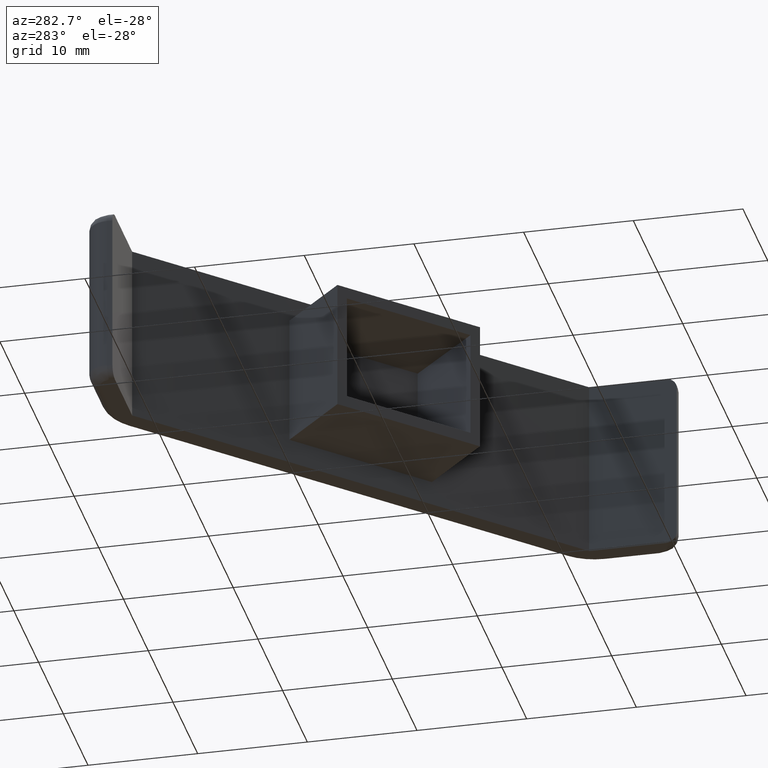
[diagram: clean part render]
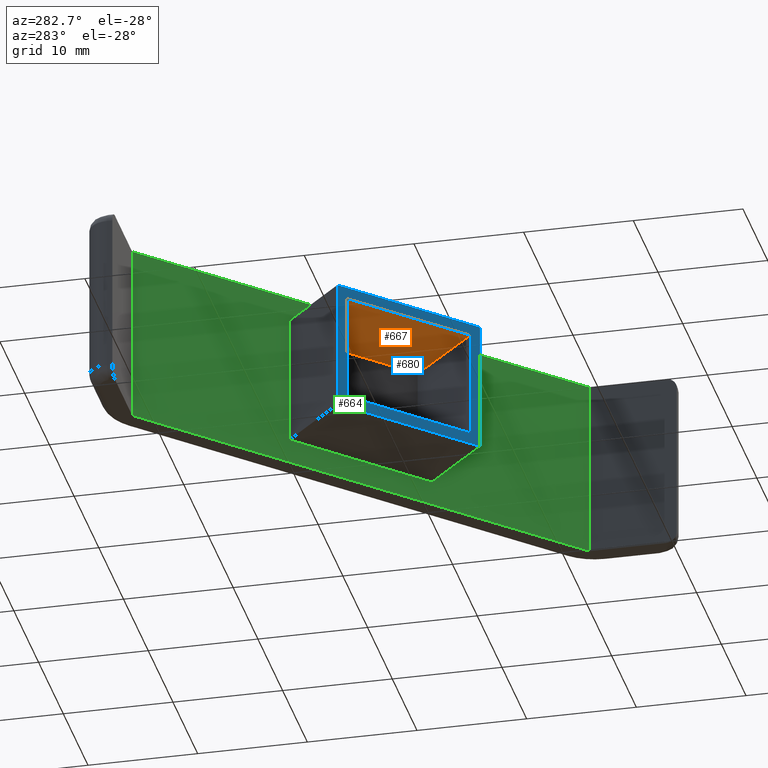
[diagram: same view with three faces highlighted in distinct colors, each labeled with its STEP entity id]
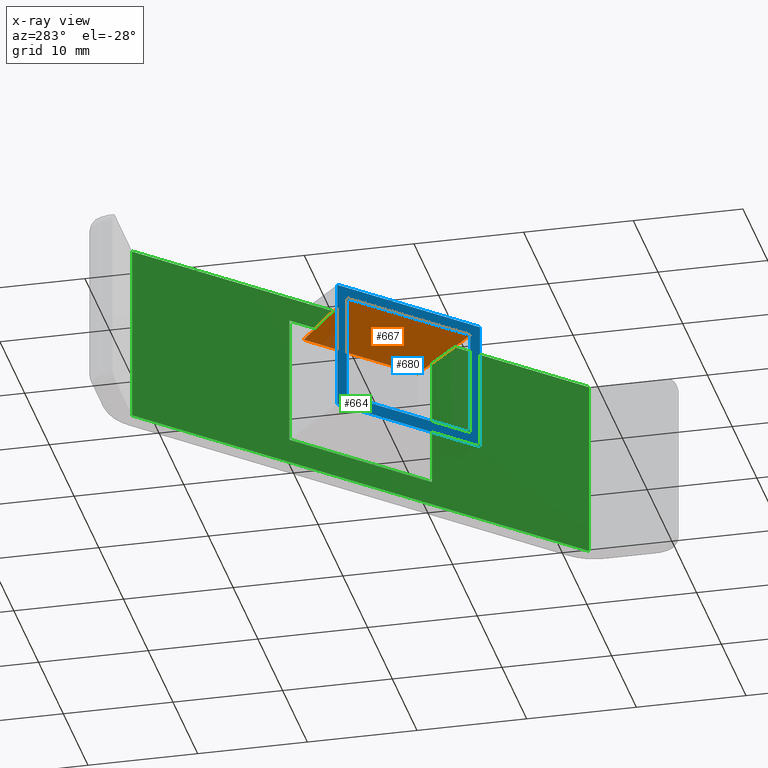
[diagram: x-ray of the same camera — body ghosted, the three highlighted faces saturated]
A machine part, auxiliary view with three faces highlighted in distinct colors.
The next image is the same camera in x-ray (body ghosted, the three faces saturated) — at least one of them is partly hidden behind the body in this view.
Their STEP definitions:

[orange] entity #667 — the highlighted planar face has unit normal (-0.037, -0.037, -0.9986).
#47=FACE_OUTER_BOUND('',#90,.T.);
#90=EDGE_LOOP('',(#486,#487,#488,#489));
#152=LINE('',#1061,#214);
#157=LINE('',#1071,#219);
#158=LINE('',#1073,#220);
#159=LINE('',#1074,#221);
#214=VECTOR('',#830,12.);
#219=VECTOR('',#839,8.02656718785064);
#220=VECTOR('',#840,8.02656718785069);
#221=VECTOR('',#841,13.);
#318=VERTEX_POINT('',#1058);
#319=VERTEX_POINT('',#1060);
#322=VERTEX_POINT('',#1070);
#323=VERTEX_POINT('',#1072);
#380=EDGE_CURVE('',#319,#318,#152,.T.);
#385=EDGE_CURVE('',#322,#319,#157,.T.);
#386=EDGE_CURVE('',#318,#323,#158,.T.);
#387=EDGE_CURVE('',#322,#323,#159,.T.);
#486=ORIENTED_EDGE('',*,*,#385,.T.);
#487=ORIENTED_EDGE('',*,*,#380,.T.);
#488=ORIENTED_EDGE('',*,*,#386,.T.);
#489=ORIENTED_EDGE('',*,*,#387,.F.);
#647=PLANE('',#719);
#667=ADVANCED_FACE('',(#47),#647,.T.);
#719=AXIS2_PLACEMENT_3D('',#1069,#837,#838);
#830=DIRECTION('',(0.707106781186547,-0.707106781186548,0.));
#837=DIRECTION('center_axis',(-0.0370071095592681,-0.0370071095592681,-0.998629534754574));
#838=DIRECTION('ref_axis',(-0.999314062578908,0.,0.0370324767202721));
#839=DIRECTION('',(0.748814219008006,0.660718428536476,-0.0522343144275855));
#840=DIRECTION('',(-0.660718428536475,-0.748814219008007,0.0522343144275855));
#841=DIRECTION('',(0.707106781186547,-0.707106781186548,-3.47420823359313E-18));
#1058=CARTESIAN_POINT('',(29.2426406871193,20.7573593128808,4.5));
#1060=CARTESIAN_POINT('',(20.7573593128808,29.2426406871193,4.5));
#1061=CARTESIAN_POINT('',(19.696699141101,30.3033008588991,4.5));
#1069=CARTESIAN_POINT('Origin',(19.696699141101,30.3033008588991,4.5));
#1070=CARTESIAN_POINT('',(14.7469516727951,23.9393398282202,4.91926223426434));
#1071=CARTESIAN_POINT('',(14.3932242826937,23.6272274251895,4.94393685614943));
#1072=CARTESIAN_POINT('',(23.9393398282202,14.746951672795,4.91926223426434));
#1073=CARTESIAN_POINT('',(23.6272274251895,14.3932242826936,4.94393685614943));
#1074=CARTESIAN_POINT('',(14.0398448916086,24.6464466094067,4.91926223426434));

[blue] entity #680 — the highlighted planar face has unit normal (0.7071, 0.7071, 0).
#41=FACE_BOUND('',#104,.T.);
#60=FACE_OUTER_BOUND('',#103,.T.);
#103=EDGE_LOOP('',(#542,#543,#544,#545));
#104=EDGE_LOOP('',(#546,#547,#548,#549));
#156=LINE('',#1068,#218);
#159=LINE('',#1074,#221);
#181=LINE('',#1136,#243);
#184=LINE('',#1142,#246);
#186=LINE('',#1145,#248);
#187=LINE('',#1147,#249);
#188=LINE('',#1148,#250);
#189=LINE('',#1149,#251);
#218=VECTOR('',#836,13.);
#221=VECTOR('',#841,13.);
#243=VECTOR('',#899,12.);
#246=VECTOR('',#904,12.);
#248=VECTOR('',#908,15.);
#249=VECTOR('',#911,15.);
#250=VECTOR('',#912,9.83852446852868);
#251=VECTOR('',#913,9.83852446852868);
#320=VERTEX_POINT('',#1064);
#321=VERTEX_POINT('',#1066);
#322=VERTEX_POINT('',#1070);
#323=VERTEX_POINT('',#1072);
#344=VERTEX_POINT('',#1133);
#345=VERTEX_POINT('',#1135);
#346=VERTEX_POINT('',#1139);
#347=VERTEX_POINT('',#1141);
#384=EDGE_CURVE('',#320,#321,#156,.T.);
#387=EDGE_CURVE('',#322,#323,#159,.T.);
#417=EDGE_CURVE('',#345,#344,#181,.T.);
#420=EDGE_CURVE('',#347,#346,#184,.T.);
#422=EDGE_CURVE('',#346,#345,#186,.T.);
#423=EDGE_CURVE('',#344,#347,#187,.T.);
#424=EDGE_CURVE('',#322,#321,#188,.T.);
#425=EDGE_CURVE('',#323,#320,#189,.T.);
#542=ORIENTED_EDGE('',*,*,#417,.T.);
#543=ORIENTED_EDGE('',*,*,#423,.T.);
#544=ORIENTED_EDGE('',*,*,#420,.T.);
#545=ORIENTED_EDGE('',*,*,#422,.T.);
#546=ORIENTED_EDGE('',*,*,#424,.F.);
#547=ORIENTED_EDGE('',*,*,#387,.T.);
#548=ORIENTED_EDGE('',*,*,#425,.T.);
#549=ORIENTED_EDGE('',*,*,#384,.T.);
#658=PLANE('',#740);
#680=ADVANCED_FACE('',(#60,#41),#658,.F.);
#740=AXIS2_PLACEMENT_3D('',#1146,#909,#910);
#836=DIRECTION('',(-0.707106781186547,0.707106781186548,-3.47420823359313E-18));
#841=DIRECTION('',(0.707106781186547,-0.707106781186548,-3.47420823359313E-18));
#899=DIRECTION('',(5.41087747005995E-65,0.,-1.));
#904=DIRECTION('',(-5.41087747005995E-65,0.,1.));
#908=DIRECTION('',(-0.707106781186547,0.707106781186548,0.));
#909=DIRECTION('center_axis',(0.707106781186548,0.707106781186547,1.09476442525376E-47));
#910=DIRECTION('ref_axis',(-0.707106781186548,0.707106781186547,0.));
#911=DIRECTION('',(0.707106781186547,-0.707106781186548,0.));
#912=DIRECTION('',(5.41087747005995E-65,0.,-1.));
#913=DIRECTION('',(5.41087747005995E-65,0.,-1.));
#1064=CARTESIAN_POINT('',(23.9393398282202,14.746951672795,-4.91926223426434));
#1066=CARTESIAN_POINT('',(14.7469516727951,23.9393398282202,-4.91926223426434));
#1068=CARTESIAN_POINT('',(24.6464466094067,14.0398448916085,-4.91926223426434));
#1070=CARTESIAN_POINT('',(14.7469516727951,23.9393398282202,4.91926223426434));
#1072=CARTESIAN_POINT('',(23.9393398282202,14.746951672795,4.91926223426434));
#1074=CARTESIAN_POINT('',(14.0398448916086,24.6464466094067,4.91926223426434));
#1133=CARTESIAN_POINT('',(14.0398448916086,24.6464466094067,-6.00000000000001));
#1135=CARTESIAN_POINT('',(14.0398448916086,24.6464466094067,6.00000000000001));
#1136=CARTESIAN_POINT('',(14.0398448916086,24.6464466094067,4.5));
#1139=CARTESIAN_POINT('',(24.6464466094067,14.0398448916085,6.00000000000001));
#1141=CARTESIAN_POINT('',(24.6464466094067,14.0398448916085,-6.00000000000001));
#1142=CARTESIAN_POINT('',(24.6464466094067,14.0398448916085,4.5));
#1145=CARTESIAN_POINT('',(14.0398448916086,24.6464466094067,6.00000000000001));
#1146=CARTESIAN_POINT('Origin',(14.0398448916086,24.6464466094067,6.00000000000001));
#1147=CARTESIAN_POINT('',(14.0398448916086,24.6464466094067,-6.00000000000001));
#1148=CARTESIAN_POINT('',(14.7469516727951,23.9393398282202,13.9628073243519));
#1149=CARTESIAN_POINT('',(23.9393398282202,14.746951672795,13.9628073243519));

[green] entity #664 — the highlighted planar face has unit normal (0.7071, 0.7071, 0).
#40=FACE_BOUND('',#87,.T.);
#44=FACE_OUTER_BOUND('',#86,.T.);
#86=EDGE_LOOP('',(#470,#471,#472,#473));
#87=EDGE_LOOP('',(#474,#475,#476,#477));
#131=LINE('',#1006,#193);
#140=LINE('',#1035,#202);
#144=LINE('',#1044,#206);
#145=LINE('',#1045,#207);
#146=LINE('',#1048,#208);
#147=LINE('',#1050,#209);
#148=LINE('',#1052,#210);
#149=LINE('',#1053,#211);
#193=VECTOR('',#791,48.0832611206852);
#202=VECTOR('',#812,48.0832611206852);
#206=VECTOR('',#820,16.5);
#207=VECTOR('',#821,16.5);
#208=VECTOR('',#822,15.);
#209=VECTOR('',#823,12.);
#210=VECTOR('',#824,15.);
#211=VECTOR('',#825,12.);
#293=VERTEX_POINT('',#1003);
#294=VERTEX_POINT('',#1005);
#307=VERTEX_POINT('',#1032);
#308=VERTEX_POINT('',#1034);
#312=VERTEX_POINT('',#1046);
#313=VERTEX_POINT('',#1047);
#314=VERTEX_POINT('',#1049);
#315=VERTEX_POINT('',#1051);
#353=EDGE_CURVE('',#293,#294,#131,.T.);
#367=EDGE_CURVE('',#308,#307,#140,.T.);
#372=EDGE_CURVE('',#294,#307,#144,.T.);
#373=EDGE_CURVE('',#293,#308,#145,.T.);
#374=EDGE_CURVE('',#312,#313,#146,.T.);
#375=EDGE_CURVE('',#314,#312,#147,.T.);
#376=EDGE_CURVE('',#315,#314,#148,.T.);
#377=EDGE_CURVE('',#313,#315,#149,.T.);
#470=ORIENTED_EDGE('',*,*,#367,.T.);
#471=ORIENTED_EDGE('',*,*,#372,.F.);
#472=ORIENTED_EDGE('',*,*,#353,.F.);
#473=ORIENTED_EDGE('',*,*,#373,.T.);
#474=ORIENTED_EDGE('',*,*,#374,.F.);
#475=ORIENTED_EDGE('',*,*,#375,.F.);
#476=ORIENTED_EDGE('',*,*,#376,.F.);
#477=ORIENTED_EDGE('',*,*,#377,.F.);
#644=PLANE('',#716);
#664=ADVANCED_FACE('',(#44,#40),#644,.F.);
#716=AXIS2_PLACEMENT_3D('',#1043,#818,#819);
#791=DIRECTION('',(0.707106781186547,-0.707106781186547,1.09476442525376E-47));
#812=DIRECTION('',(0.707106781186547,-0.707106781186547,1.09476442525376E-47));
#818=DIRECTION('center_axis',(0.707106781186548,0.707106781186548,0.));
#819=DIRECTION('ref_axis',(-0.707106781186548,0.707106781186547,0.));
#820=DIRECTION('',(5.41087747005995E-65,0.,-1.));
#821=DIRECTION('',(5.41087747005995E-65,0.,-1.));
#822=DIRECTION('',(0.707106781186547,-0.707106781186548,0.));
#823=DIRECTION('',(5.41087747005995E-65,0.,-1.));
#824=DIRECTION('',(-0.707106781186547,0.707106781186548,0.));
#825=DIRECTION('',(-5.41087747005995E-65,0.,1.));
#1003=CARTESIAN_POINT('',(8.00000000000005,42.,8.25000000000001));
#1005=CARTESIAN_POINT('',(42.,8.00000000000001,8.25000000000001));
#1006=CARTESIAN_POINT('',(8.00000000000005,42.,8.25000000000001));
#1032=CARTESIAN_POINT('',(42.,8.00000000000001,-8.25000000000001));
#1034=CARTESIAN_POINT('',(8.00000000000005,42.,-8.25000000000001));
#1035=CARTESIAN_POINT('',(8.00000000000005,42.,-8.25000000000001));
#1043=CARTESIAN_POINT('Origin',(8.00000000000005,42.,8.25000000000001));
#1044=CARTESIAN_POINT('',(42.,8.00000000000001,8.25000000000001));
#1045=CARTESIAN_POINT('',(8.00000000000005,42.,8.25000000000001));
#1046=CARTESIAN_POINT('',(19.696699141101,30.3033008588991,-6.00000000000001));
#1047=CARTESIAN_POINT('',(30.3033008588992,19.6966991411009,-6.00000000000001));
#1048=CARTESIAN_POINT('',(19.696699141101,30.3033008588991,-6.00000000000001));
#1049=CARTESIAN_POINT('',(19.696699141101,30.3033008588991,6.00000000000001));
#1050=CARTESIAN_POINT('',(19.696699141101,30.3033008588991,4.5));
#1051=CARTESIAN_POINT('',(30.3033008588992,19.6966991411009,6.00000000000001));
#1052=CARTESIAN_POINT('',(19.696699141101,30.3033008588991,6.00000000000001));
#1053=CARTESIAN_POINT('',(30.3033008588992,19.6966991411009,4.5));